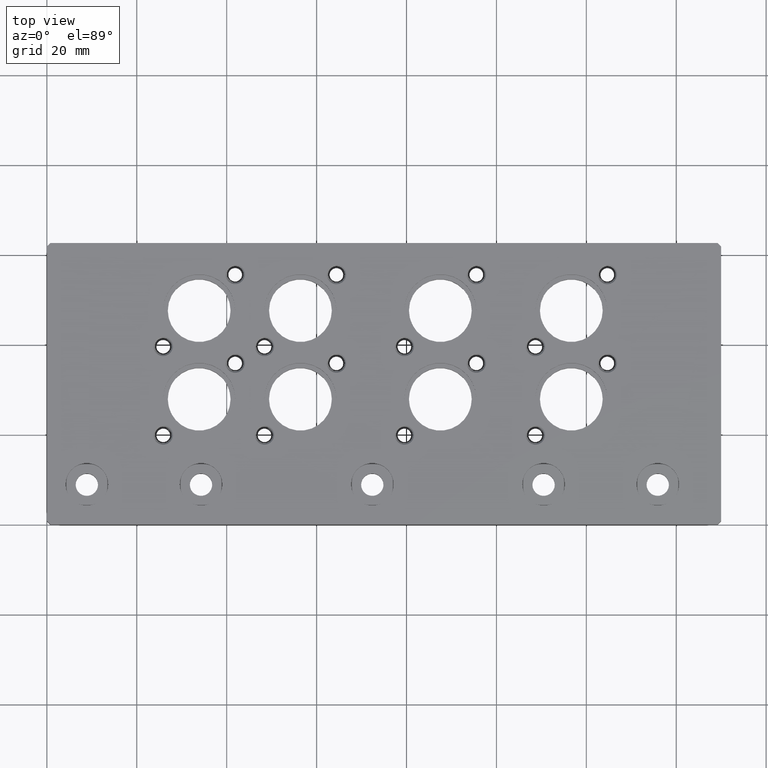
[diagram: clean part render]
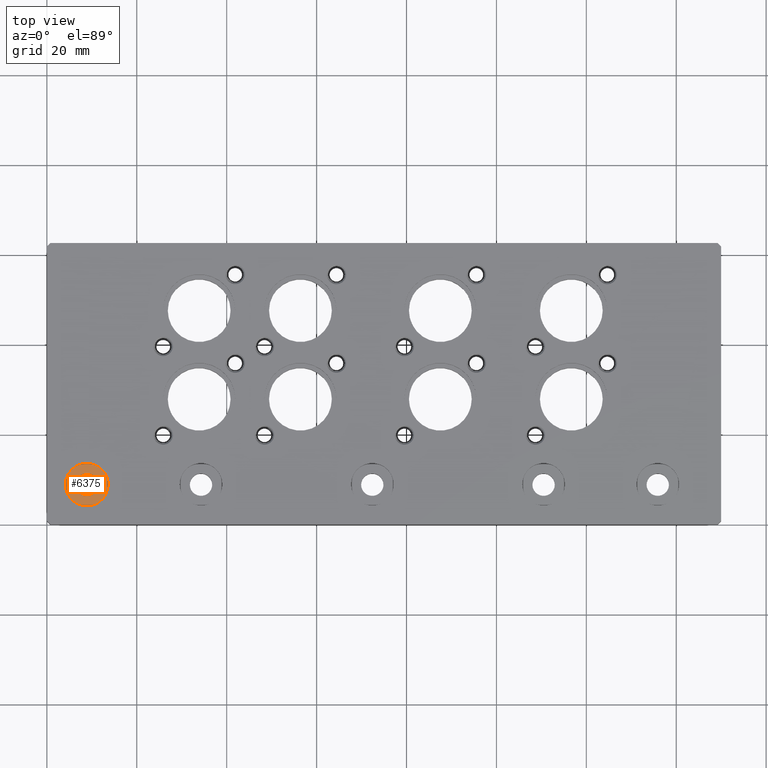
[diagram: same view with one face highlighted and labeled with its STEP entity id]
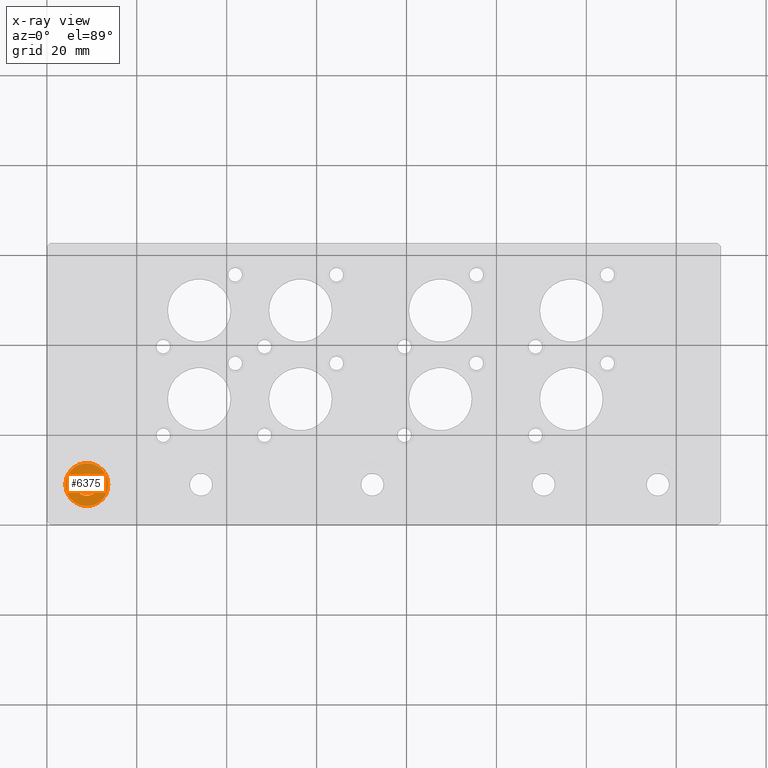
[diagram: x-ray of the same camera — body ghosted, the highlighted face saturated]
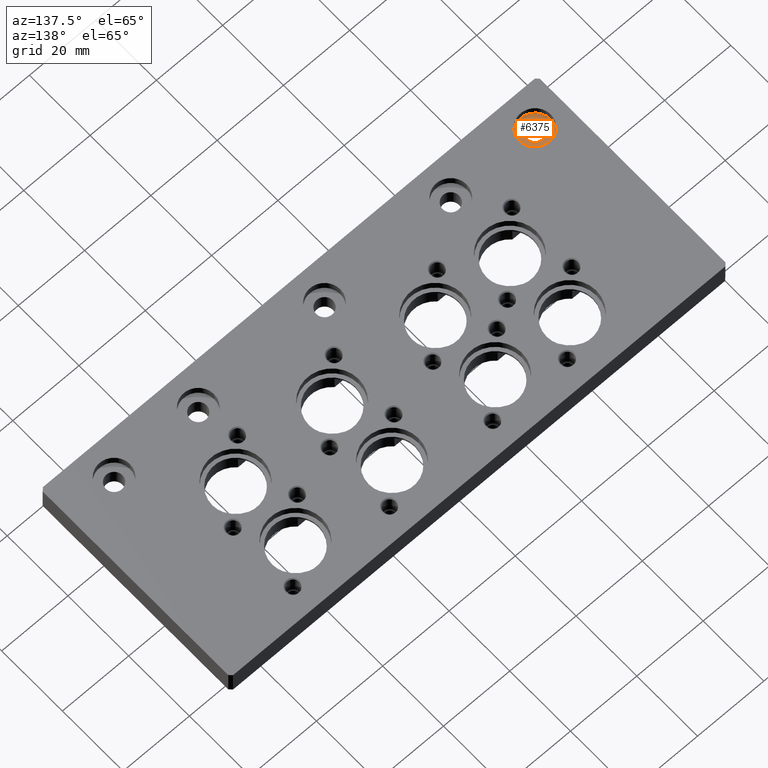
[diagram: same view with one face highlighted and labeled with its STEP entity id]
A machine part, top view. The second image highlights one B-rep face of the part: STEP entity #6375.
The next image is the same camera in x-ray: the body ghosted, the highlighted face saturated — about 0% of this face is hidden behind the body in this view.
A second angle (auxiliary view) of the same face is appended — the face is thin or edge-on in the first view.
In plain terms, the highlighted planar face has unit normal (0, 0, -1).
Its self-contained STEP definition (entity closure, byte-faithful):
#94 = DIRECTION ( 'NONE',  ( 1.000000000000000000, 0.0000000000000000000, 0.0000000000000000000 ) ) ;
#195 = DIRECTION ( 'NONE',  ( 1.000000000000000000, 0.0000000000000000000, 0.0000000000000000000 ) ) ;
#255 = FACE_BOUND ( 'NONE', #1171, .T. ) ;
#260 = CIRCLE ( 'NONE', #4152, 0.09800000000000001800 ) ;
#418 = DIRECTION ( 'NONE',  ( -1.000000000000000000, 0.0000000000000000000, -0.0000000000000000000 ) ) ;
#1171 = EDGE_LOOP ( 'NONE', ( #4343, #3295 ) ) ;
#1625 = FACE_OUTER_BOUND ( 'NONE', #1701, .T. ) ;
#1701 = EDGE_LOOP ( 'NONE', ( #5701, #4852 ) ) ;
#1834 = VERTEX_POINT ( 'NONE', #5157 ) ;
#1953 = AXIS2_PLACEMENT_3D ( 'NONE', #7064, #3562, #94 ) ;
#2274 = VERTEX_POINT ( 'NONE', #3900 ) ;
#2334 = DIRECTION ( 'NONE',  ( -0.0000000000000000000, -0.0000000000000000000, 1.000000000000000000 ) ) ;
#2343 = CARTESIAN_POINT ( 'NONE',  ( 0.3499999999999998100, 0.3500000000000000900, 0.1970000000000000400 ) ) ;
#2699 = CARTESIAN_POINT ( 'NONE',  ( 0.4479999999999998400, 0.3500000000000000900, 0.1970000000000000400 ) ) ;
#2738 = EDGE_CURVE ( 'NONE', #1834, #4799, #2864, .T. ) ;
#2864 = CIRCLE ( 'NONE', #3888, 0.1874999999999999700 ) ;
#2898 = AXIS2_PLACEMENT_3D ( 'NONE', #2699, #3875, #418 ) ;
#2907 = DIRECTION ( 'NONE',  ( 1.000000000000000000, 0.0000000000000000000, 0.0000000000000000000 ) ) ;
#3295 = ORIENTED_EDGE ( 'NONE', *, *, #5401, .F. ) ;
#3562 = DIRECTION ( 'NONE',  ( -0.0000000000000000000, -0.0000000000000000000, 1.000000000000000000 ) ) ;
#3652 = DIRECTION ( 'NONE',  ( -0.0000000000000000000, -0.0000000000000000000, 1.000000000000000000 ) ) ;
#3772 = AXIS2_PLACEMENT_3D ( 'NONE', #5840, #2334, #6426 ) ;
#3875 = DIRECTION ( 'NONE',  ( 0.0000000000000000000, 0.0000000000000000000, -1.000000000000000000 ) ) ;
#3888 = AXIS2_PLACEMENT_3D ( 'NONE', #2343, #6444, #2907 ) ;
#3900 = CARTESIAN_POINT ( 'NONE',  ( 0.4479999999999998400, 0.3500000000000000900, 0.1970000000000000400 ) ) ;
#4152 = AXIS2_PLACEMENT_3D ( 'NONE', #7159, #3652, #195 ) ;
#4343 = ORIENTED_EDGE ( 'NONE', *, *, #7331, .F. ) ;
#4357 = CARTESIAN_POINT ( 'NONE',  ( 0.1624999999999998400, 0.3500000000000000900, 0.1970000000000000400 ) ) ;
#4394 = CIRCLE ( 'NONE', #3772, 0.09800000000000001800 ) ;
#4799 = VERTEX_POINT ( 'NONE', #4357 ) ;
#4852 = ORIENTED_EDGE ( 'NONE', *, *, #5660, .T. ) ;
#5048 = PLANE ( 'NONE',  #2898 ) ;
#5157 = CARTESIAN_POINT ( 'NONE',  ( 0.5374999999999997600, 0.3500000000000000900, 0.1970000000000000400 ) ) ;
#5401 = EDGE_CURVE ( 'NONE', #6524, #2274, #4394, .T. ) ;
#5660 = EDGE_CURVE ( 'NONE', #4799, #1834, #6103, .T. ) ;
#5701 = ORIENTED_EDGE ( 'NONE', *, *, #2738, .T. ) ;
#5840 = CARTESIAN_POINT ( 'NONE',  ( 0.3499999999999998100, 0.3500000000000000900, 0.1970000000000000400 ) ) ;
#6103 = CIRCLE ( 'NONE', #1953, 0.1874999999999999700 ) ;
#6375 = ADVANCED_FACE ( 'NONE', ( #255, #1625 ), #5048, .F. ) ;
#6426 = DIRECTION ( 'NONE',  ( 1.000000000000000000, 0.0000000000000000000, 0.0000000000000000000 ) ) ;
#6444 = DIRECTION ( 'NONE',  ( -0.0000000000000000000, -0.0000000000000000000, 1.000000000000000000 ) ) ;
#6524 = VERTEX_POINT ( 'NONE', #6995 ) ;
#6995 = CARTESIAN_POINT ( 'NONE',  ( 0.2519999999999997800, 0.3500000000000000900, 0.1970000000000000400 ) ) ;
#7064 = CARTESIAN_POINT ( 'NONE',  ( 0.3499999999999998100, 0.3500000000000000900, 0.1970000000000000400 ) ) ;
#7159 = CARTESIAN_POINT ( 'NONE',  ( 0.3499999999999998100, 0.3500000000000000900, 0.1970000000000000400 ) ) ;
#7331 = EDGE_CURVE ( 'NONE', #2274, #6524, #260, .T. ) ;